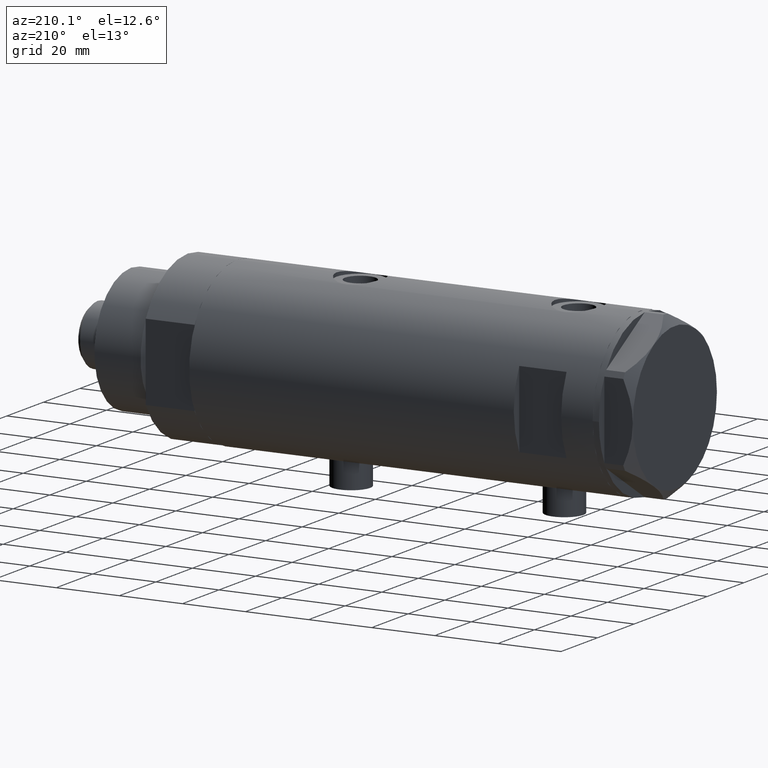
[diagram: clean part render]
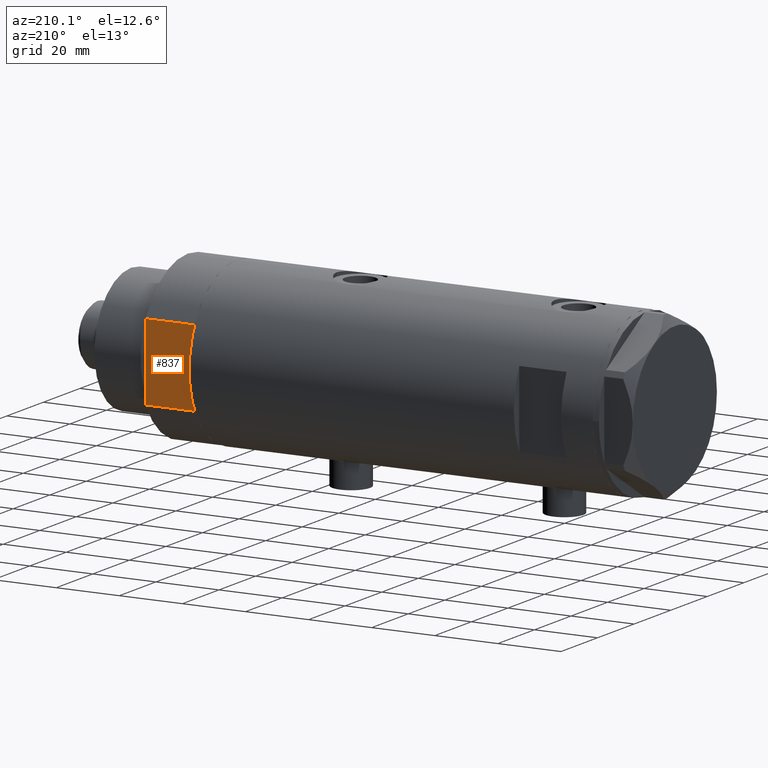
[diagram: same view with one face highlighted and labeled with its STEP entity id]
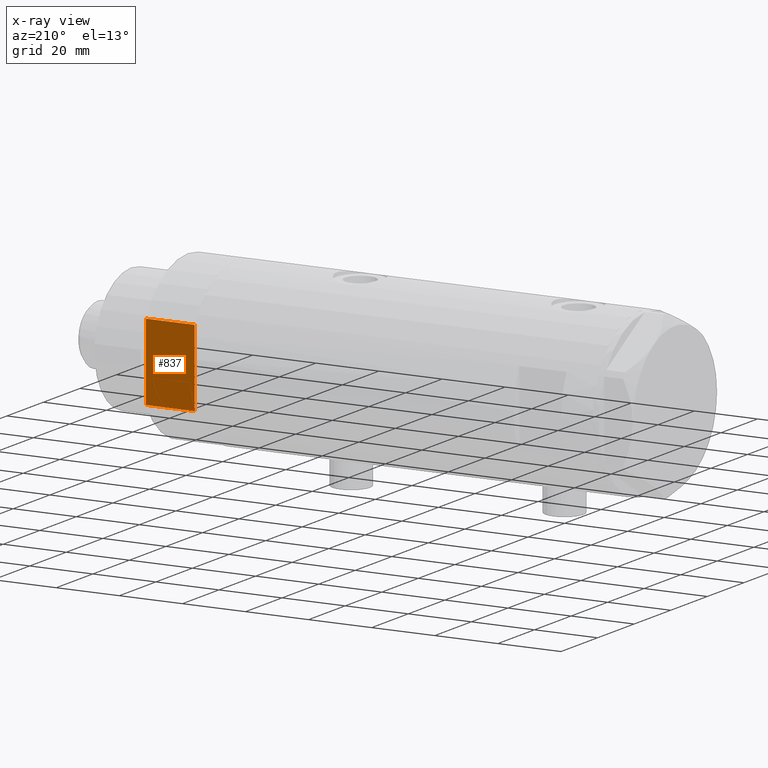
[diagram: x-ray of the same camera — body ghosted, the highlighted face saturated]
A machine part, auxiliary view. The second image highlights one B-rep face of the part: STEP entity #837.
The next image is the same camera in x-ray: the body ghosted, the highlighted face saturated — about 0% of this face is hidden behind the body in this view.
In plain terms, the highlighted planar face has unit normal (0, -1, -0).
Its self-contained STEP definition (entity closure, byte-faithful):
#219 = CARTESIAN_POINT ( 'NONE',  ( 12.12435565298215323, 23.00000000000000355, 0.000000000000000000 ) ) ;
#547 = LINE ( 'NONE', #4553, #2313 ) ;
#587 = VERTEX_POINT ( 'NONE', #4880 ) ;
#733 = DIRECTION ( 'NONE',  ( 0.000000000000000000, -1.000000000000000000, 0.000000000000000000 ) ) ;
#813 = EDGE_CURVE ( 'NONE', #2962, #3623, #1501, .T. ) ;
#837 = ADVANCED_FACE ( 'NONE', ( #2725 ), #3566, .F. ) ;
#1115 = CARTESIAN_POINT ( 'NONE',  ( -12.12435565298215145, 23.00000000000000355, 0.000000000000000000 ) ) ;
#1501 = LINE ( 'NONE', #1115, #3362 ) ;
#1558 = DIRECTION ( 'NONE',  ( 1.000000000000000000, 0.000000000000000000, 0.000000000000000000 ) ) ;
#1954 = DIRECTION ( 'NONE',  ( 0.000000000000000000, -0.000000000000000000, -1.000000000000000000 ) ) ;
#1962 = CARTESIAN_POINT ( 'NONE',  ( -12.12435565298214613, 23.00000000000000355, 15.50000000000000000 ) ) ;
#2140 = DIRECTION ( 'NONE',  ( 1.000000000000000000, 0.000000000000000000, 0.000000000000000000 ) ) ;
#2313 = VECTOR ( 'NONE', #2140, 1000.000000000000000 ) ;
#2682 = LINE ( 'NONE', #219, #4164 ) ;
#2725 = FACE_OUTER_BOUND ( 'NONE', #4514, .T. ) ;
#2962 = VERTEX_POINT ( 'NONE', #3825 ) ;
#2998 = CARTESIAN_POINT ( 'NONE',  ( 12.12435565298214080, 23.00000000000000355, 0.000000000000000000 ) ) ;
#3043 = EDGE_CURVE ( 'NONE', #2962, #3783, #3920, .T. ) ;
#3159 = ORIENTED_EDGE ( 'NONE', *, *, #813, .F. ) ;
#3362 = VECTOR ( 'NONE', #1558, 1000.000000000000000 ) ;
#3470 = DIRECTION ( 'NONE',  ( -0.000000000000000000, -0.000000000000000000, 1.000000000000000000 ) ) ;
#3566 = PLANE ( 'NONE',  #4024 ) ;
#3584 = DIRECTION ( 'NONE',  ( -0.000000000000000000, -0.000000000000000000, 1.000000000000000000 ) ) ;
#3623 = VERTEX_POINT ( 'NONE', #2998 ) ;
#3783 = VERTEX_POINT ( 'NONE', #1962 ) ;
#3825 = CARTESIAN_POINT ( 'NONE',  ( -12.12435565298215145, 23.00000000000000355, 0.000000000000000000 ) ) ;
#3920 = LINE ( 'NONE', #5150, #4655 ) ;
#4016 = EDGE_CURVE ( 'NONE', #3623, #587, #2682, .T. ) ;
#4024 = AXIS2_PLACEMENT_3D ( 'NONE', #4744, #733, #1954 ) ;
#4065 = ORIENTED_EDGE ( 'NONE', *, *, #3043, .T. ) ;
#4164 = VECTOR ( 'NONE', #3470, 1000.000000000000000 ) ;
#4438 = ORIENTED_EDGE ( 'NONE', *, *, #4016, .F. ) ;
#4514 = EDGE_LOOP ( 'NONE', ( #5041, #4438, #3159, #4065 ) ) ;
#4553 = CARTESIAN_POINT ( 'NONE',  ( -12.12435565298215145, 23.00000000000000355, 15.50000000000000000 ) ) ;
#4639 = EDGE_CURVE ( 'NONE', #3783, #587, #547, .T. ) ;
#4655 = VECTOR ( 'NONE', #3584, 1000.000000000000000 ) ;
#4744 = CARTESIAN_POINT ( 'NONE',  ( -12.12435565298215145, 23.00000000000000355, 0.000000000000000000 ) ) ;
#4880 = CARTESIAN_POINT ( 'NONE',  ( 12.12435565298214790, 23.00000000000000355, 15.50000000000000000 ) ) ;
#5041 = ORIENTED_EDGE ( 'NONE', *, *, #4639, .T. ) ;
#5150 = CARTESIAN_POINT ( 'NONE',  ( -12.12435565298215145, 23.00000000000000355, 0.000000000000000000 ) ) ;